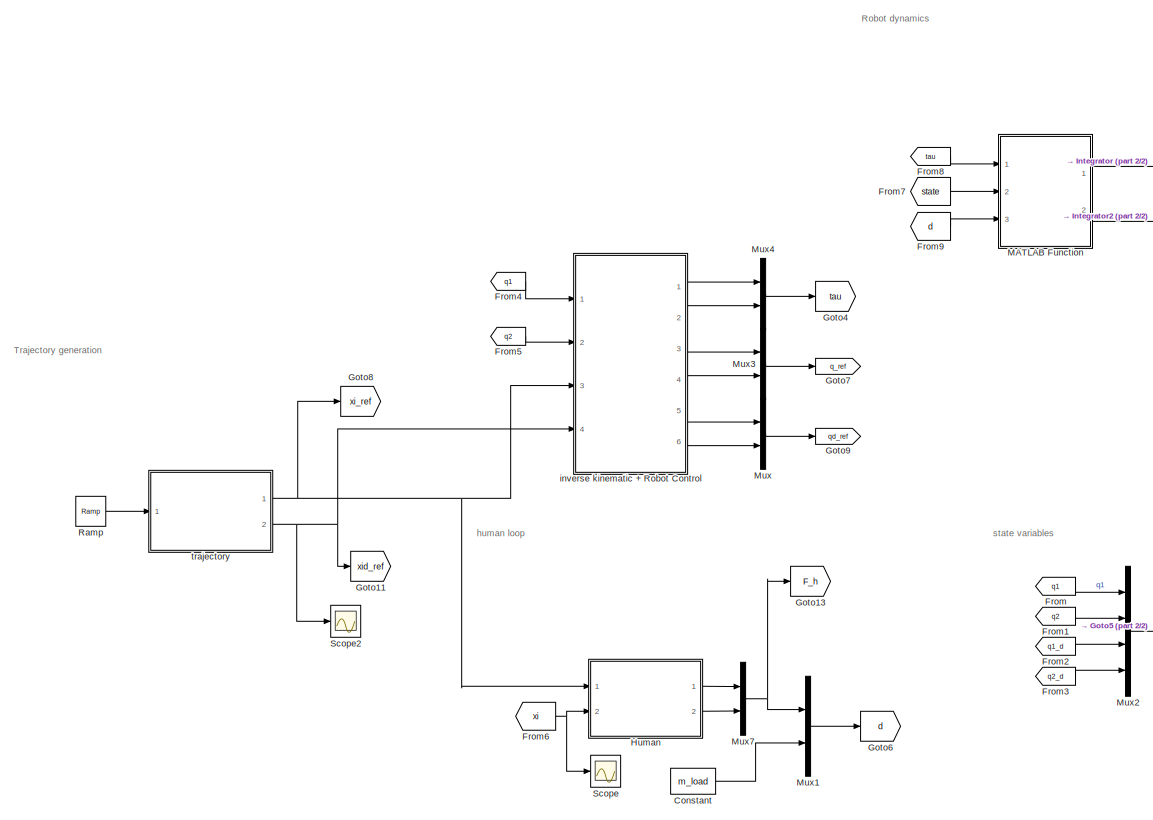
[diagram: root canvas - part 1/2, left side, full height]
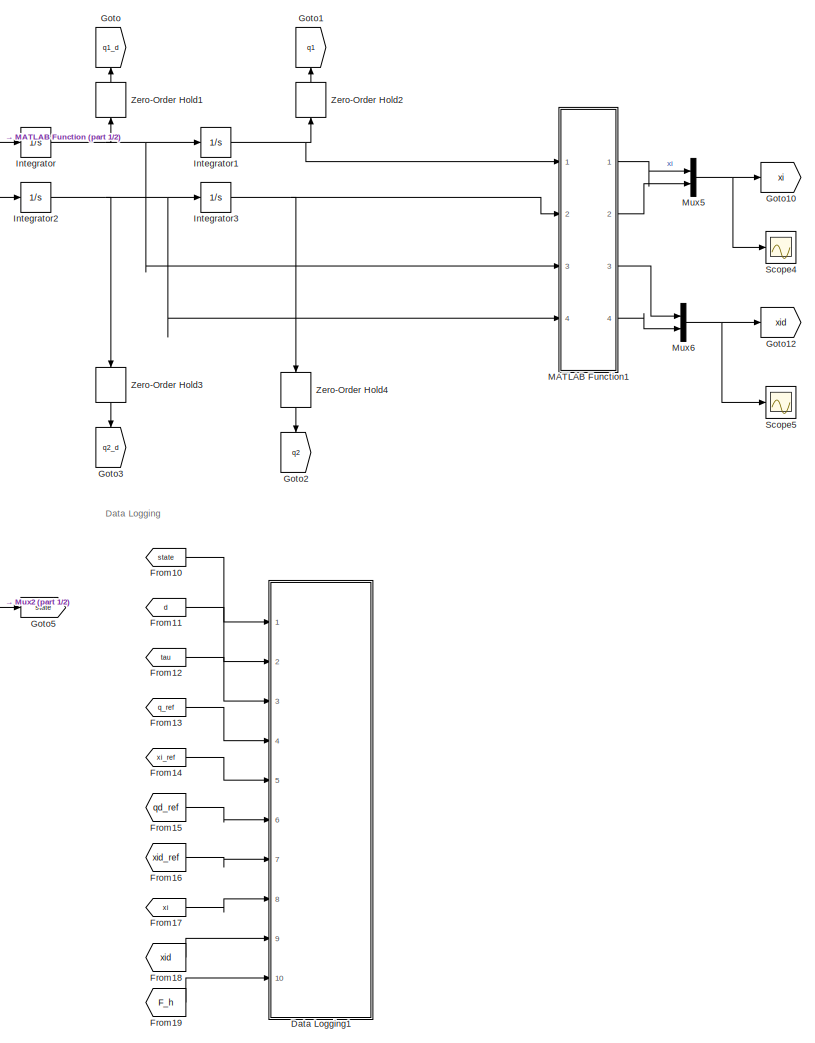
[diagram: root canvas - part 2/2, right side, full height]
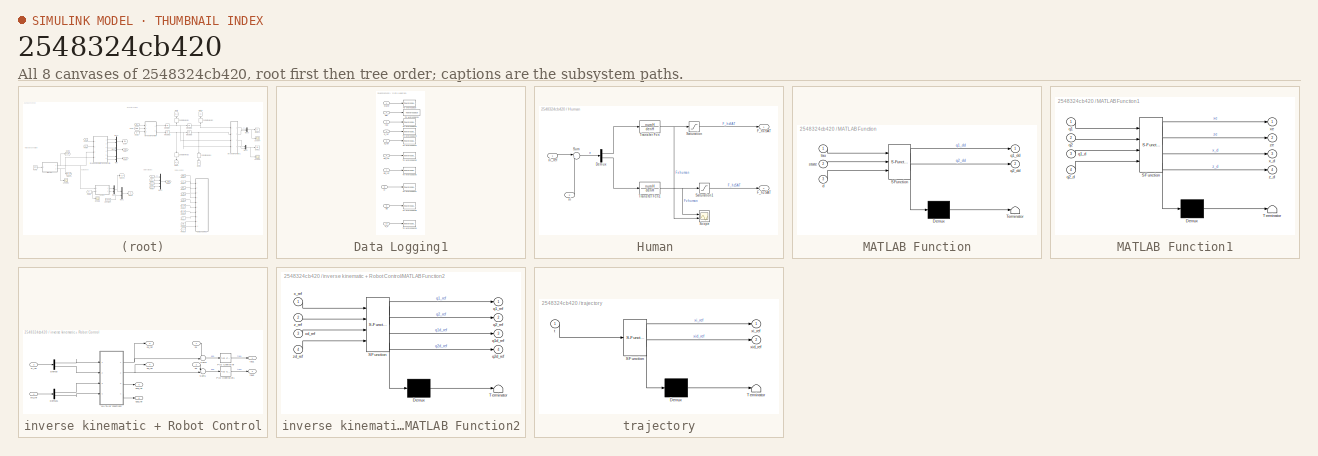
[diagram: thumbnail index - all 8 canvases of the model, root first then tree order]
MODEL slx_2548324cb420
KIND model
CONFIG AbsTol = auto
CONFIG EnableMultiTasking = off
CONFIG FixedStep = 0.02
CONFIG MaxStep = 0.02
CONFIG MinStep = auto
CONFIG RelTol = 1e-3
CONFIG SampleTimeConstraint = Unconstrained
CONFIG Solver = ode3
CONFIG SolverName = ode3
CONFIG StartTime = 0.0
CONFIG StopTime = 10
BLOCK [Constant] Constant
  Value = m_load
BLOCK [SubSystem] Data Logging1
  Ports = [10]
  RequestExecContextInheritance = off
BLOCK [Inport] Data Logging1/F_h 
  IconDisplay = Port number
  Port = 10
BLOCK [ToWorkspace] Data Logging1/To Workspace
  FixptAsFi = on
  MaxDataPoints = inf
  Ports = [1]
  SampleTime = -1
  VariableName = state
BLOCK [ToWorkspace] Data Logging1/To Workspace1
  FixptAsFi = on
  MaxDataPoints = inf
  Ports = [1]
  SampleTime = -1
  VariableName = disturbances
BLOCK [ToWorkspace] Data Logging1/To Workspace2
  FixptAsFi = on
  MaxDataPoints = inf
  Ports = [1]
  SampleTime = -1
  VariableName = tau
BLOCK [ToWorkspace] Data Logging1/To Workspace3
  FixptAsFi = on
  MaxDataPoints = inf
  Ports = [1]
  SampleTime = -1
  VariableName = q_ref
BLOCK [ToWorkspace] Data Logging1/To Workspace4
  FixptAsFi = on
  MaxDataPoints = inf
  Ports = [1]
  SampleTime = -1
  Save2DSignal = 2-D array (concatenate along first dimension)
  VariableName = xi_ref
BLOCK [ToWorkspace] Data Logging1/To Workspace5
  FixptAsFi = on
  MaxDataPoints = inf
  Ports = [1]
  SampleTime = -1
  Save2DSignal = 2-D array (concatenate along first dimension)
  VariableName = qd_ref
BLOCK [ToWorkspace] Data Logging1/To Workspace6
  FixptAsFi = on
  MaxDataPoints = inf
  Ports = [1]
  SampleTime = -1
  Save2DSignal = 2-D array (concatenate along first dimension)
  VariableName = xid_ref
BLOCK [ToWorkspace] Data Logging1/To Workspace7
  FixptAsFi = on
  MaxDataPoints = inf
  Ports = [1]
  SampleTime = -1
  Save2DSignal = 2-D array (concatenate along first dimension)
  VariableName = xi
BLOCK [ToWorkspace] Data Logging1/To Workspace8
  FixptAsFi = on
  MaxDataPoints = inf
  Ports = [1]
  SampleTime = -1
  Save2DSignal = 2-D array (concatenate along first dimension)
  VariableName = xid
BLOCK [ToWorkspace] Data Logging1/To Workspace9
  FixptAsFi = on
  MaxDataPoints = inf
  Ports = [1]
  SampleTime = -1
  VariableName = F_h
BLOCK [Inport] Data Logging1/dist
  IconDisplay = Port number
  Port = 2
BLOCK [Inport] Data Logging1/q_ref 
  IconDisplay = Port number
  Port = 4
BLOCK [Inport] Data Logging1/qd_ref 
  IconDisplay = Port number
  Port = 6
BLOCK [Inport] Data Logging1/state
  IconDisplay = Port number
BLOCK [Inport] Data Logging1/tau
  IconDisplay = Port number
  Port = 3
BLOCK [Inport] Data Logging1/xi 
  IconDisplay = Port number
  Port = 8
BLOCK [Inport] Data Logging1/xi_ref
  IconDisplay = Port number
  Port = 5
BLOCK [Inport] Data Logging1/xid
  IconDisplay = Port number
  Port = 9
BLOCK [Inport] Data Logging1/xid_ref
  IconDisplay = Port number
  Port = 7
BLOCK [From] From
  GotoTag = q1
BLOCK [From] From1
  GotoTag = q2
BLOCK [From] From10
  GotoTag = state
BLOCK [From] From11
  GotoTag = d
BLOCK [From] From12
  GotoTag = tau
BLOCK [From] From13
  GotoTag = q_ref
BLOCK [From] From14
  GotoTag = xi_ref
BLOCK [From] From15
  GotoTag = qd_ref
BLOCK [From] From16
  GotoTag = xid_ref
BLOCK [From] From17
  GotoTag = xi
BLOCK [From] From18
  GotoTag = xid
BLOCK [From] From19
  GotoTag = F_h
BLOCK [From] From2
  GotoTag = q1_d
BLOCK [From] From3
  GotoTag = q2_d
BLOCK [From] From4
  GotoTag = q1
BLOCK [From] From5
  GotoTag = q2
BLOCK [From] From6
  GotoTag = xi
BLOCK [From] From7
  GotoTag = state
BLOCK [From] From8
  GotoTag = tau
BLOCK [From] From9
  GotoTag = d
BLOCK [Goto] Goto
  GotoTag = q1_d
BLOCK [Goto] Goto1
  GotoTag = q1
BLOCK [Goto] Goto10
  GotoTag = xi
BLOCK [Goto] Goto11
  GotoTag = xid_ref
BLOCK [Goto] Goto12
  GotoTag = xid
BLOCK [Goto] Goto13
  GotoTag = F_h
BLOCK [Goto] Goto2
  GotoTag = q2
BLOCK [Goto] Goto3
  GotoTag = q2_d
BLOCK [Goto] Goto4
  GotoTag = tau
BLOCK [Goto] Goto5
  GotoTag = state
BLOCK [Goto] Goto6
  GotoTag = d
BLOCK [Goto] Goto7
  GotoTag = q_ref
BLOCK [Goto] Goto8
  GotoTag = xi_ref
BLOCK [Goto] Goto9
  GotoTag = qd_ref
BLOCK [SubSystem] Human 
  Ports = [2, 2]
  RequestExecContextInheritance = off
BLOCK [Demux] Human /Demux
  DisplayOption = bar
  Outputs = 2
  Ports = [1, 2]
BLOCK [Outport] Human /F_hxSAT
  IconDisplay = Port number
BLOCK [Outport] Human /F_hzSAT
  IconDisplay = Port number
  Port = 2
BLOCK [Saturate] Human /Saturation
  Commented = through
  InputPortMap = u0
  LowerLimit = -Fmax
  Ports = [1, 1]
  UpperLimit = Fmax
BLOCK [Saturate] Human /Saturation1
  Commented = through
  InputPortMap = u0
  LowerLimit = -Fmax
  Ports = [1, 1]
  UpperLimit = Fmax
BLOCK [Scope] Human /Scope
  Floating = off
  NumInputPorts = 2
  Ports = [2]
  ScopeSpecificationString = Simulink.scopes.TimeScopeBlockCfg('CurrentConfiguration', extmgr.ConfigurationSet(extmgr.Configuration('Core','General UI',true),extmgr.Configuration('Core','Source UI',true),extmgr.Configuration('Sources','WiredSimulink',true,'DataLoggingVariableName','ScopeData1'),extmgr.Configuration('Visuals','Time Domain',true,'SerializedDisplays',{struct('MinYLimReal','-652.16797','MaxYLimReal','506.65274','...<+1420ch>
BLOCK [Sum] Human /Sum
  IconShape = round
  InputSameDT = off
  Inputs = |+-
  OutDataTypeStr = Inherit: Inherit via internal rule
  Ports = [2, 1]
  SaturateOnIntegerOverflow = off
BLOCK [TransferFcn] Human /Transfer Fcn
  Denominator = denH
  Numerator = numH
BLOCK [TransferFcn] Human /Transfer Fcn1
  Denominator = denH
  Numerator = numH
BLOCK [Inport] Human /xi
  IconDisplay = Port number
  Port = 2
BLOCK [Inport] Human /xi_ref
  IconDisplay = Port number
BLOCK [Integrator] Integrator
  Ports = [1, 1]
BLOCK [Integrator] Integrator1
  InitialCondition = 2.18
  Ports = [1, 1]
BLOCK [Integrator] Integrator2
  Ports = [1, 1]
BLOCK [Integrator] Integrator3
  InitialCondition = 2.72
  Ports = [1, 1]
BLOCK [SubSystem] MATLAB Function
  ErrorFcn = Stateflow.Translate.translate
  PermitHierarchicalResolution = ExplicitOnly
  Ports = [3, 2]
  RequestExecContextInheritance = off
  SFBlockType = MATLAB Function
  TreatAsAtomicUnit = on
BLOCK [Demux] MATLAB Function/ Demux 
  Outputs = 1
  Ports = [1, 1]
BLOCK [S-Function] MATLAB Function/ SFunction 
  EnableBusSupport = off
  FunctionName = sf_sfun
  PortCounts = [3 3]
  Ports = [3, 3]
  SFcnIsStateOwnerBlock = off
  SFunctionDeploymentMode = off
  Tag = Stateflow S-Function Model_daq 2
BLOCK [Terminator] MATLAB Function/ Terminator 
BLOCK [Inport] MATLAB Function/d
  IconDisplay = Port number
  Port = 3
BLOCK [Outport] MATLAB Function/q1_dd
  IconDisplay = Port number
BLOCK [Outport] MATLAB Function/q2_dd
  IconDisplay = Port number
  Port = 2
BLOCK [Inport] MATLAB Function/state
  IconDisplay = Port number
  Port = 2
BLOCK [Inport] MATLAB Function/tau
  IconDisplay = Port number
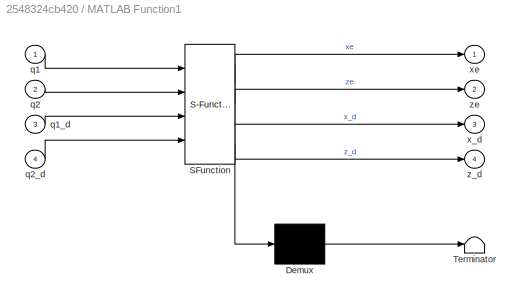
BLOCK [SubSystem] MATLAB Function1
  ErrorFcn = Stateflow.Translate.translate
  PermitHierarchicalResolution = ExplicitOnly
  Ports = [4, 4]
  RequestExecContextInheritance = off
  SFBlockType = MATLAB Function
  TreatAsAtomicUnit = on
BLOCK [Demux] MATLAB Function1/ Demux 
  Outputs = 1
  Ports = [1, 1]
BLOCK [S-Function] MATLAB Function1/ SFunction 
  EnableBusSupport = off
  FunctionName = sf_sfun
  PortCounts = [4 5]
  Ports = [4, 5]
  SFcnIsStateOwnerBlock = off
  SFunctionDeploymentMode = off
  Tag = Stateflow S-Function Model_daq 8
BLOCK [Terminator] MATLAB Function1/ Terminator 
BLOCK [Inport] MATLAB Function1/q1
  IconDisplay = Port number
BLOCK [Inport] MATLAB Function1/q1_d
  IconDisplay = Port number
  Port = 3
BLOCK [Inport] MATLAB Function1/q2
  IconDisplay = Port number
  Port = 2
BLOCK [Inport] MATLAB Function1/q2_d
  IconDisplay = Port number
  Port = 4
BLOCK [Outport] MATLAB Function1/x_d
  IconDisplay = Port number
  Port = 3
BLOCK [Outport] MATLAB Function1/xe
  IconDisplay = Port number
BLOCK [Outport] MATLAB Function1/z_d
  IconDisplay = Port number
  Port = 4
BLOCK [Outport] MATLAB Function1/ze
  IconDisplay = Port number
  Port = 2
BLOCK [Mux] Mux
  DisplayOption = bar
  Inputs = 2
  Ports = [2, 1]
BLOCK [Mux] Mux1
  DisplayOption = bar
  Inputs = 2
  Ports = [2, 1]
BLOCK [Mux] Mux2
  DisplayOption = bar
  Ports = [4, 1]
BLOCK [Mux] Mux3
  DisplayOption = bar
  Inputs = 2
  Ports = [2, 1]
BLOCK [Mux] Mux4
  DisplayOption = bar
  Inputs = 2
  Ports = [2, 1]
BLOCK [Mux] Mux5
  DisplayOption = bar
  Inputs = 2
  Ports = [2, 1]
BLOCK [Mux] Mux6
  DisplayOption = bar
  Inputs = 2
  Ports = [2, 1]
BLOCK [Mux] Mux7
  DisplayOption = bar
  Inputs = 2
  Ports = [2, 1]
BLOCK [Reference] Ramp  REF=simulink/Sources/Ramp
  Ports = [0, 1]
  SourceBlock = simulink/Sources/Ramp
  SourceProductBaseCode = SL
  SourceProductName = Simulink
  SourceType = Ramp
BLOCK [Scope] Scope
  Floating = off
  NumInputPorts = 1
  Ports = [1]
  ScopeSpecificationString = Simulink.scopes.TimeScopeBlockCfg('CurrentConfiguration', extmgr.ConfigurationSet(extmgr.Configuration('Core','General UI',true),extmgr.Configuration('Core','Source UI',true),extmgr.Configuration('Sources','WiredSimulink',true),extmgr.Configuration('Visuals','Time Domain',true,'SerializedDisplays',{struct('MinYLimReal','-2.71276','MaxYLimReal','2.80688','YLabelReal','','MinYLimMag','0.00000','MaxY...<+1379ch>
BLOCK [Scope] Scope2
  Floating = off
  NumInputPorts = 1
  Ports = [1]
  ScopeSpecificationString = Simulink.scopes.TimeScopeBlockCfg('CurrentConfiguration', extmgr.ConfigurationSet(extmgr.Configuration('Core','General UI',true),extmgr.Configuration('Core','Source UI',true),extmgr.Configuration('Sources','WiredSimulink',true,'DataLoggingVariableName','ScopeData1'),extmgr.Configuration('Visuals','Time Domain',true,'SerializedDisplays',{struct('MinYLimReal','-0.04687','MaxYLimReal','0.42188','YLab...<+1402ch>
BLOCK [Scope] Scope4
  Floating = off
  NumInputPorts = 1
  Ports = [1]
  ScopeSpecificationString = Simulink.scopes.TimeScopeBlockCfg('CurrentConfiguration', extmgr.ConfigurationSet(extmgr.Configuration('Core','General UI',true),extmgr.Configuration('Core','Source UI',true),extmgr.Configuration('Sources','WiredSimulink',true,'DataLoggingVariableName','ScopeData1'),extmgr.Configuration('Visuals','Time Domain',true,'SerializedDisplays',{struct('MinYLimReal','-2.77138','MaxYLimReal','3.30793','YLab...<+1454ch>
BLOCK [Scope] Scope5
  Floating = off
  NumInputPorts = 1
  Ports = [1]
  ScopeSpecificationString = Simulink.scopes.TimeScopeBlockCfg('CurrentConfiguration', extmgr.ConfigurationSet(extmgr.Configuration('Core','General UI',true),extmgr.Configuration('Core','Source UI',true),extmgr.Configuration('Sources','WiredSimulink',true,'DataLoggingVariableName','ScopeData2'),extmgr.Configuration('Visuals','Time Domain',true),extmgr.Configuration('Tools','Plot Navigation',true),extmgr.Configuration('Tools',...<+40ch>
BLOCK [ZeroOrderHold] Zero-Order Hold1
  SampleTime = Ts
BLOCK [ZeroOrderHold] Zero-Order Hold2
  SampleTime = Ts
BLOCK [ZeroOrderHold] Zero-Order Hold3
  SampleTime = Ts
BLOCK [ZeroOrderHold] Zero-Order Hold4
  SampleTime = Ts
BLOCK [SubSystem] inverse kinematic + Robot Control
  Ports = [4, 6]
  RequestExecContextInheritance = off
BLOCK [Demux] inverse kinematic + Robot Control/Demux
  DisplayOption = bar
  Outputs = 2
  Ports = [1, 2]
BLOCK [Demux] inverse kinematic + Robot Control/Demux1
  DisplayOption = bar
  Outputs = 2
  Ports = [1, 2]
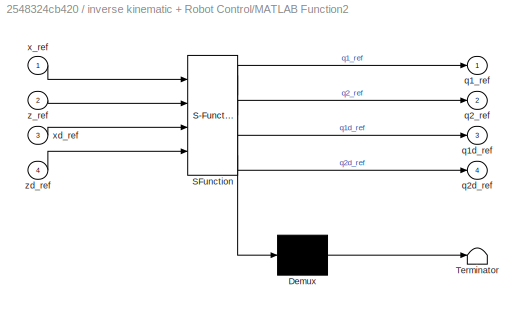
BLOCK [SubSystem] inverse kinematic + Robot Control/MATLAB Function2
  ErrorFcn = Stateflow.Translate.translate
  PermitHierarchicalResolution = ExplicitOnly
  Ports = [4, 4]
  RequestExecContextInheritance = off
  SFBlockType = MATLAB Function
  TreatAsAtomicUnit = on
BLOCK [Demux] inverse kinematic + Robot Control/MATLAB Function2/ Demux 
  Outputs = 1
  Ports = [1, 1]
BLOCK [S-Function] inverse kinematic + Robot Control/MATLAB Function2/ SFunction 
  EnableBusSupport = off
  FunctionName = sf_sfun
  PortCounts = [4 5]
  Ports = [4, 5]
  SFcnIsStateOwnerBlock = off
  SFunctionDeploymentMode = off
  Tag = Stateflow S-Function Model_daq 3
BLOCK [Terminator] inverse kinematic + Robot Control/MATLAB Function2/ Terminator 
BLOCK [Outport] inverse kinematic + Robot Control/MATLAB Function2/q1_ref
  IconDisplay = Port number
BLOCK [Outport] inverse kinematic + Robot Control/MATLAB Function2/q1d_ref
  IconDisplay = Port number
  Port = 3
BLOCK [Outport] inverse kinematic + Robot Control/MATLAB Function2/q2_ref
  IconDisplay = Port number
  Port = 2
BLOCK [Outport] inverse kinematic + Robot Control/MATLAB Function2/q2d_ref
  IconDisplay = Port number
  Port = 4
BLOCK [Inport] inverse kinematic + Robot Control/MATLAB Function2/x_ref
  IconDisplay = Port number
BLOCK [Inport] inverse kinematic + Robot Control/MATLAB Function2/xd_ref
  IconDisplay = Port number
  Port = 3
BLOCK [Inport] inverse kinematic + Robot Control/MATLAB Function2/z_ref
  IconDisplay = Port number
  Port = 2
BLOCK [Inport] inverse kinematic + Robot Control/MATLAB Function2/zd_ref
  IconDisplay = Port number
  Port = 4
BLOCK [Reference] inverse kinematic + Robot Control/PID Controller  REF=simulink/Continuous/PID Controller
  Ports = [1, 1]
  SourceBlock = simulink/Continuous/PID Controller
  SourceProductBaseCode = SL
  SourceProductName = Simulink
  SourceType = PID 1dof
BLOCK [Reference] inverse kinematic + Robot Control/PID Controller1  REF=simulink/Continuous/PID Controller
  Ports = [1, 1]
  SourceBlock = simulink/Continuous/PID Controller
  SourceProductBaseCode = SL
  SourceProductName = Simulink
  SourceType = PID 1dof
BLOCK [Sum] inverse kinematic + Robot Control/Sum1
  IconShape = round
  InputSameDT = off
  Inputs = -+|
  OutDataTypeStr = Inherit: Inherit via internal rule
  Ports = [2, 1]
  SaturateOnIntegerOverflow = off
BLOCK [Sum] inverse kinematic + Robot Control/Sum2
  IconShape = round
  InputSameDT = off
  Inputs = -+|
  OutDataTypeStr = Inherit: Inherit via internal rule
  Ports = [2, 1]
  SaturateOnIntegerOverflow = off
BLOCK [Inport] inverse kinematic + Robot Control/q1
  IconDisplay = Port number
BLOCK [Outport] inverse kinematic + Robot Control/q1_ref 
  IconDisplay = Port number
  Port = 3
BLOCK [Outport] inverse kinematic + Robot Control/q1d_ref
  IconDisplay = Port number
  Port = 5
BLOCK [Inport] inverse kinematic + Robot Control/q2
  IconDisplay = Port number
  Port = 2
BLOCK [Outport] inverse kinematic + Robot Control/q2_ref
  IconDisplay = Port number
  Port = 4
BLOCK [Outport] inverse kinematic + Robot Control/q2d_ref
  IconDisplay = Port number
  Port = 6
BLOCK [Outport] inverse kinematic + Robot Control/tau1
  IconDisplay = Port number
BLOCK [Outport] inverse kinematic + Robot Control/tau2
  IconDisplay = Port number
  Port = 2
BLOCK [Inport] inverse kinematic + Robot Control/xi_ref
  IconDisplay = Port number
  Port = 3
BLOCK [Inport] inverse kinematic + Robot Control/xid_ref
  IconDisplay = Port number
  Port = 4
BLOCK [SubSystem] trajectory
  ErrorFcn = Stateflow.Translate.translate
  PermitHierarchicalResolution = ExplicitOnly
  Ports = [1, 2]
  RequestExecContextInheritance = off
  SFBlockType = MATLAB Function
  TreatAsAtomicUnit = on
BLOCK [Demux] trajectory/ Demux 
  Outputs = 1
  Ports = [1, 1]
BLOCK [S-Function] trajectory/ SFunction 
  EnableBusSupport = off
  FunctionName = sf_sfun
  PortCounts = [1 3]
  Ports = [1, 3]
  SFcnIsStateOwnerBlock = off
  SFunctionDeploymentMode = off
  Tag = Stateflow S-Function Model_daq 1
BLOCK [Terminator] trajectory/ Terminator 
BLOCK [Inport] trajectory/t 
  IconDisplay = Port number
BLOCK [Outport] trajectory/xi_ref
  IconDisplay = Port number
BLOCK [Outport] trajectory/xid_ref
  IconDisplay = Port number
  Port = 2
ANNOTATION (root): Data Logging
ANNOTATION (root): Robot dynamics
ANNOTATION (root): Trajectory generation
ANNOTATION (root): human loop
ANNOTATION (root): state variables
LINE Constant:1 -> Mux1:2
LINE Data Logging1/F_h :1 -> Data Logging1/To Workspace9:1
LINE Data Logging1/dist:1 -> Data Logging1/To Workspace1:1
LINE Data Logging1/q_ref :1 -> Data Logging1/To Workspace3:1
LINE Data Logging1/qd_ref :1 -> Data Logging1/To Workspace5:1
LINE Data Logging1/state:1 -> Data Logging1/To Workspace:1
LINE Data Logging1/tau:1 -> Data Logging1/To Workspace2:1
LINE Data Logging1/xi :1 -> Data Logging1/To Workspace7:1
LINE Data Logging1/xi_ref:1 -> Data Logging1/To Workspace4:1
LINE Data Logging1/xid:1 -> Data Logging1/To Workspace8:1
LINE Data Logging1/xid_ref:1 -> Data Logging1/To Workspace6:1
LINE From10:1 -> Data Logging1:1
LINE From11:1 -> Data Logging1:2
LINE From12:1 -> Data Logging1:3
LINE From13:1 -> Data Logging1:4
LINE From14:1 -> Data Logging1:5
LINE From15:1 -> Data Logging1:6
LINE From16:1 -> Data Logging1:7
LINE From17:1 -> Data Logging1:8
LINE From18:1 -> Data Logging1:9
LINE From19:1 -> Data Logging1:10
LINE From1:1 -> Mux2:2
LINE From2:1 -> Mux2:3
LINE From3:1 -> Mux2:4
LINE From4:1 -> inverse kinematic + Robot Control:1
LINE From5:1 -> inverse kinematic + Robot Control:2
NET From6:1 -> Human :2, Scope:1
LINE From7:1 -> MATLAB Function:2
LINE From8:1 -> MATLAB Function:1
LINE From9:1 -> MATLAB Function:3
LINE From:1 -> Mux2:1
LINE Human /Demux:1 -> Human /Transfer Fcn:1
LINE Human /Demux:2 -> Human /Transfer Fcn1:1
LINE Human /Saturation1:1 -> Human /F_hzSAT:1
LINE Human /Saturation:1 -> Human /F_hxSAT:1
LINE Human /Sum:1 -> Human /Demux:1
NET Human /Transfer Fcn1:1 -> Human /Saturation1:1, Human /Scope:1
NET Human /Transfer Fcn:1 -> Human /Saturation:1, Human /Scope:2
LINE Human /xi:1 -> Human /Sum:2
LINE Human /xi_ref:1 -> Human /Sum:1
LINE Human :1 -> Mux7:1
LINE Human :2 -> Mux7:2
NET Integrator1:1 -> MATLAB Function1:1, Zero-Order Hold2:1
NET Integrator2:1 -> Integrator3:1, MATLAB Function1:4, Zero-Order Hold3:1
NET Integrator3:1 -> MATLAB Function1:2, Zero-Order Hold4:1
NET Integrator:1 -> Integrator1:1, MATLAB Function1:3, Zero-Order Hold1:1
LINE MATLAB Function1:1 -> Mux5:1
LINE MATLAB Function1:2 -> Mux5:2
LINE MATLAB Function1:3 -> Mux6:1
LINE MATLAB Function1:4 -> Mux6:2
LINE MATLAB Function:1 -> Integrator:1
LINE MATLAB Function:2 -> Integrator2:1
LINE Mux1:1 -> Goto6:1
LINE Mux2:1 -> Goto5:1
LINE Mux3:1 -> Goto7:1
LINE Mux4:1 -> Goto4:1
NET Mux5:1 -> Goto10:1, Scope4:1
NET Mux6:1 -> Goto12:1, Scope5:1
NET Mux7:1 -> Goto13:1, Mux1:1
LINE Mux:1 -> Goto9:1
LINE Ramp:1 -> trajectory:1
LINE Zero-Order Hold1:1 -> Goto:1
LINE Zero-Order Hold2:1 -> Goto1:1
LINE Zero-Order Hold3:1 -> Goto3:1
LINE Zero-Order Hold4:1 -> Goto2:1
LINE inverse kinematic + Robot Control/Demux1:1 -> inverse kinematic + Robot Control/MATLAB Function2:3
LINE inverse kinematic + Robot Control/Demux1:2 -> inverse kinematic + Robot Control/MATLAB Function2:4
LINE inverse kinematic + Robot Control/Demux:1 -> inverse kinematic + Robot Control/MATLAB Function2:1
LINE inverse kinematic + Robot Control/Demux:2 -> inverse kinematic + Robot Control/MATLAB Function2:2
NET inverse kinematic + Robot Control/MATLAB Function2:1 -> inverse kinematic + Robot Control/Sum2:2, inverse kinematic + Robot Control/q1_ref :1
NET inverse kinematic + Robot Control/MATLAB Function2:2 -> inverse kinematic + Robot Control/Sum1:2, inverse kinematic + Robot Control/q2_ref:1
LINE inverse kinematic + Robot Control/MATLAB Function2:3 -> inverse kinematic + Robot Control/q1d_ref:1
LINE inverse kinematic + Robot Control/MATLAB Function2:4 -> inverse kinematic + Robot Control/q2d_ref:1
LINE inverse kinematic + Robot Control/PID Controller1:1 -> inverse kinematic + Robot Control/tau2:1
LINE inverse kinematic + Robot Control/PID Controller:1 -> inverse kinematic + Robot Control/tau1:1
LINE inverse kinematic + Robot Control/Sum1:1 -> inverse kinematic + Robot Control/PID Controller1:1
LINE inverse kinematic + Robot Control/Sum2:1 -> inverse kinematic + Robot Control/PID Controller:1
LINE inverse kinematic + Robot Control/q1:1 -> inverse kinematic + Robot Control/Sum2:1
LINE inverse kinematic + Robot Control/q2:1 -> inverse kinematic + Robot Control/Sum1:1
LINE inverse kinematic + Robot Control/xi_ref:1 -> inverse kinematic + Robot Control/Demux:1
LINE inverse kinematic + Robot Control/xid_ref:1 -> inverse kinematic + Robot Control/Demux1:1
LINE inverse kinematic + Robot Control:1 -> Mux4:1
LINE inverse kinematic + Robot Control:2 -> Mux4:2
LINE inverse kinematic + Robot Control:3 -> Mux3:1
LINE inverse kinematic + Robot Control:4 -> Mux3:2
LINE inverse kinematic + Robot Control:5 -> Mux:1
LINE inverse kinematic + Robot Control:6 -> Mux:2
NET trajectory:1 -> Goto8:1, Human :1, inverse kinematic + Robot Control:3
NET trajectory:2 -> Goto11:1, Scope2:1, inverse kinematic + Robot Control:4
note: NET lines group one-source signal fan-out (src -> all destinations, sorted); 1:1 wires keep LINE
CHART trajectory states=1 transitions=1
  STATE_LABEL 'eML_blk_kernel()'
  STATE_LABEL 'SCRIPT:\nfunction [xi_ref, xid_ref] = trajectory(t)\nt0 = 0;\ntf = 4;\npos_0 = [0 0];\npos_f = [1 1];\nvel_0 = [0 0];\nvel_f = [0 0];\nT = tf-t0;\n\nif t<4\n    a0 = pos_0;\n    a1 = vel_0;\n    a2 = (-3*(pos_0-pos_f)-(2*vel_0+vel_f)*T)/T^2;\n    a3 = (2*(pos_0-pos_f)+(vel_0+vel_f)*T)/T^3;\n    xi_ref = a0+a1*(t-t0)+a2*(t-t0)^2+a3*(t-t0)^3;    %positions\n    xid_ref = a1+2*a2*(t-t0)+3*a3*(t-t0)^2;           %spe...<+162ch>'
CHART MATLAB Function states=1 transitions=1
  STATE_LABEL 'eML_blk_kernel()'
  STATE_LABEL 'SCRIPT:\nfunction [q1_dd, q2_dd] = robot_dynamics(tau, state, d)\n\nF_hx = d(1);\nF_hz = d(2);\nm_load = d(3);\nq1  = state(1);\nq2 = state(2);\nq1_d = state(3);\nq2_d = state(4); \n\n%robot parameters\ng   = 9.81;\nJ1  = 10;   %inertia link 1\nJ2  = 10;   %inertia link 2\nm1  = 50;   %mass link 1\nm2  = 50;   %mass link 2\na1  = 1.2;    %lenght link 1\na2  = 1;  %length link 2\nac1  = a1/2; %centre of mass link 1\na...<+936ch>'
CHART inverse kinematic + Robot Control/MATLAB Function2 states=1 transitions=1
  STATE_LABEL 'eML_blk_kernel()'
  STATE_LABEL "SCRIPT:\nfunction [q1_ref, q2_ref, q1d_ref, q2d_ref] = inverse_kin(x_ref, z_ref, xd_ref, zd_ref)\n\n%robot parameters\na1  = 1.2;    %lenght link 1\na2  = 1;  %length link 2\n\n%moving the robot half meter right from the origin\n%DOING SO WE DON'T HAVE ANY KINEMATIC SINGULARITIES\n%% computation of positions\nx_ref=x_ref-0.5;\nc2 = (x_ref^2+z_ref^2-a1^2-a2^2)/(2*a1*a2);\ns2 = sqrt(1-c2^2);\nq2_ref = atan2(s2,c...<+354ch>"
CHART MATLAB Function1 states=1 transitions=1
  STATE_LABEL 'eML_blk_kernel()'
  STATE_LABEL 'SCRIPT:\nfunction [xe, ze, x_d, z_d]   = direct_kin_test(q1, q2, q1_d, q2_d)\n%robot parameters\na1  = 1.2;    %lenght link 1\na2  = 1;  %length link 2\n\n%kinematic functions\nc1= cos(q1);\ns1= sin(q1);\nc2= cos(q2);\ns2= sin(q2);\nc12= cos(q1+q2);\ns12= sin(q1+q2);\n\n% Computation of end effector quantities given the measure joints\n% quantities\nif q1 == 0 && q2 == 0\n    xe = 0;\n    ze = 0;\n   \nelse \n    xe =...<+279ch>'
